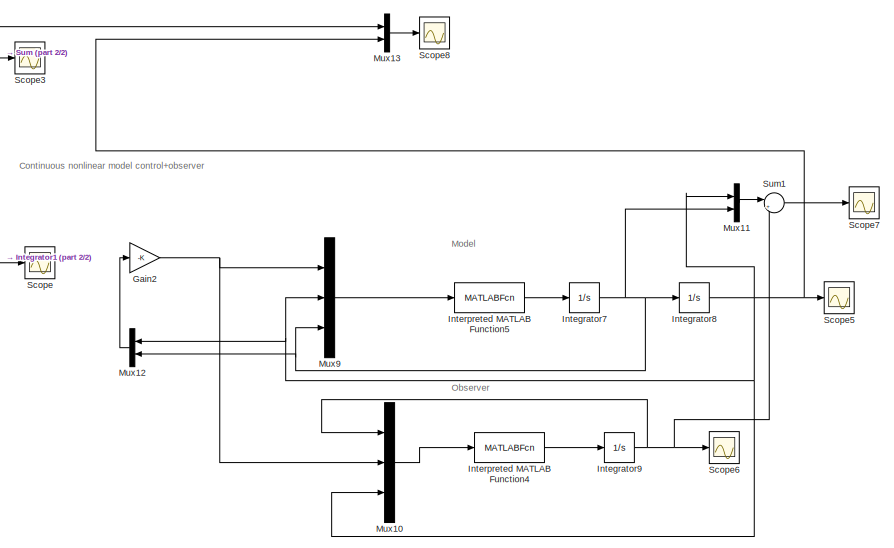
[diagram: root canvas - part 1/2, middle right region]
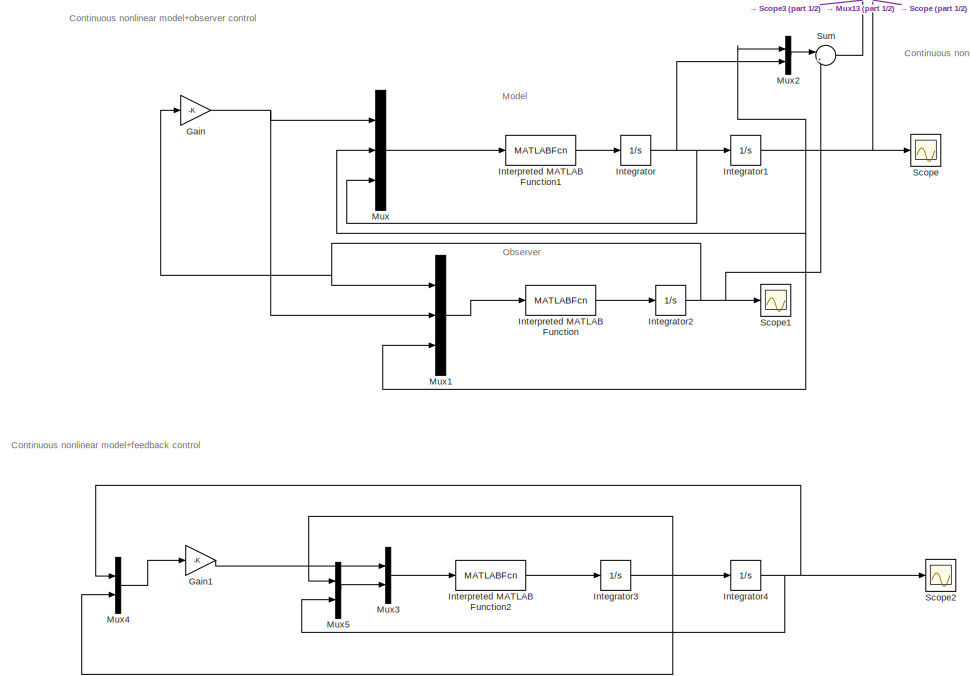
[diagram: root canvas - part 2/2, left side, full height]
MODEL slx_0f21c987a335
KIND model
CONFIG AbsTol = auto
CONFIG FixedStep = auto
CONFIG MaxStep = auto
CONFIG MinStep = auto
CONFIG RelTol = 1e-7
CONFIG SampleTimeConstraint = Unconstrained
CONFIG Solver = VariableStepAuto
CONFIG SolverMode = Auto
CONFIG SolverName = VariableStepAuto
CONFIG StartTime = 0.0
CONFIG StopTime = 30.0
BLOCK [Gain] Gain
  Gain = -K
  Multiplication = Matrix(K*u) (u vector)
  OutDataTypeStr = Inherit: Inherit via internal rule
  ParamDataTypeStr = Inherit: Inherit via internal rule
  SaturateOnIntegerOverflow = off
BLOCK [Gain] Gain1
  Gain = -K
  Multiplication = Matrix(K*u) (u vector)
  OutDataTypeStr = Inherit: Inherit via internal rule
  ParamDataTypeStr = Inherit: Inherit via internal rule
  SaturateOnIntegerOverflow = off
BLOCK [Gain] Gain2
  Gain = -K
  Multiplication = Matrix(K*u) (u vector)
  OutDataTypeStr = Inherit: Inherit via internal rule
  ParamDataTypeStr = Inherit: Inherit via internal rule
  SaturateOnIntegerOverflow = off
BLOCK [Integrator] Integrator
  ContinuousStateAttributes = 'speed'
  InitialCondition = [0 0 0]'
  Ports = [1, 1]
BLOCK [Integrator] Integrator1
  ContinuousStateAttributes = 'position'
  InitialCondition = [1 1 1]'
  Ports = [1, 1]
BLOCK [Integrator] Integrator2
  ContinuousStateAttributes = 'state.approx'
  InitialCondition = [1 0.5 0 0 0 0]'
  Ports = [1, 1]
BLOCK [Integrator] Integrator3
  ContinuousStateAttributes = 'speed'
  InitialCondition = [0 0 0]'
  Ports = [1, 1]
BLOCK [Integrator] Integrator4
  ContinuousStateAttributes = 'position'
  InitialCondition = [1 1 1]'
  Ports = [1, 1]
BLOCK [Integrator] Integrator7
  ContinuousStateAttributes = 'speed'
  InitialCondition = [0 0 0]'
  Ports = [1, 1]
BLOCK [Integrator] Integrator8
  ContinuousStateAttributes = 'position'
  InitialCondition = [1 1 1]'
  Ports = [1, 1]
BLOCK [Integrator] Integrator9
  ContinuousStateAttributes = 'state.approx'
  InitialCondition = [1 0.5 0 0 0 0]'
  Ports = [1, 1]
BLOCK [MATLABFcn] Interpreted MATLAB Function
  MATLABFcn = Observer
  OutputDimensions = 6
  Ports = [1, 1]
BLOCK [MATLABFcn] Interpreted MATLAB Function1
  MATLABFcn = nonlmodel
  Output1D = off
  OutputDimensions = 3
  Ports = [1, 1]
BLOCK [MATLABFcn] Interpreted MATLAB Function2
  MATLABFcn = nonlmodel
  Output1D = off
  OutputDimensions = 3
  Ports = [1, 1]
BLOCK [MATLABFcn] Interpreted MATLAB Function4
  MATLABFcn = Observer
  OutputDimensions = 6
  Ports = [1, 1]
BLOCK [MATLABFcn] Interpreted MATLAB Function5
  MATLABFcn = nonlmodel
  Output1D = off
  OutputDimensions = 3
  Ports = [1, 1]
BLOCK [Mux] Mux
  DisplayOption = bar
  Inputs = 3
  Ports = [3, 1]
BLOCK [Mux] Mux1
  DisplayOption = bar
  Inputs = 3
  Ports = [3, 1]
BLOCK [Mux] Mux10
  DisplayOption = bar
  Inputs = 3
  Ports = [3, 1]
BLOCK [Mux] Mux11
  DisplayOption = bar
  Inputs = 2
  Ports = [2, 1]
BLOCK [Mux] Mux12
  DisplayOption = bar
  Inputs = 2
  Ports = [2, 1]
BLOCK [Mux] Mux13
  DisplayOption = bar
  Inputs = 2
  Ports = [2, 1]
BLOCK [Mux] Mux2
  DisplayOption = bar
  Inputs = 2
  Ports = [2, 1]
BLOCK [Mux] Mux3
  DisplayOption = bar
  Inputs = 2
  Ports = [2, 1]
BLOCK [Mux] Mux4
  DisplayOption = bar
  Inputs = 2
  Ports = [2, 1]
BLOCK [Mux] Mux5
  DisplayOption = bar
  Inputs = 2
  Ports = [2, 1]
BLOCK [Mux] Mux9
  DisplayOption = bar
  Inputs = 3
  Ports = [3, 1]
BLOCK [Scope] Scope
  Ports = [1]
  ScopeSpecificationString = Simulink.scopes.TimeScopeBlockCfg('CurrentConfiguration', extmgr.ConfigurationSet(extmgr.Configuration('Core','General UI',true),extmgr.Configuration('Core','Source UI',true),extmgr.Configuration('Sources','WiredSimulink',true),extmgr.Configuration('Visuals','Time Domain',true,'SerializedDisplays',{struct('MinYLimReal','-1.59559','MaxYLimReal','1.38482','YLabelReal','','MinYLimMag','0.00000','MaxY...<+1436ch>
BLOCK [Scope] Scope1
  Ports = [1]
  ScopeSpecificationString = Simulink.scopes.TimeScopeBlockCfg('CurrentConfiguration', extmgr.ConfigurationSet(extmgr.Configuration('Core','General UI',true),extmgr.Configuration('Core','Source UI',true),extmgr.Configuration('Sources','WiredSimulink',true,'DataLoggingVariableName','ScopeData1'),extmgr.Configuration('Visuals','Time Domain',true,'SerializedDisplays',{struct('MinYLimReal','-1.57407','MaxYLimReal','1.79258','YLab...<+1477ch>
BLOCK [Scope] Scope2
  Ports = [1]
  ScopeSpecificationString = Simulink.scopes.TimeScopeBlockCfg('CurrentConfiguration', extmgr.ConfigurationSet(extmgr.Configuration('Core','General UI',true),extmgr.Configuration('Core','Source UI',true),extmgr.Configuration('Sources','WiredSimulink',true,'DataLoggingVariableName','ScopeData1'),extmgr.Configuration('Visuals','Time Domain',true,'SerializedDisplays',{struct('MinYLimReal','-23.35668','MaxYLimReal','14.2657','YLa...<+1479ch>
BLOCK [Scope] Scope3
  Ports = [1]
  ScopeSpecificationString = Simulink.scopes.TimeScopeBlockCfg('CurrentConfiguration', extmgr.ConfigurationSet(extmgr.Configuration('Core','General UI',true),extmgr.Configuration('Core','Source UI',true),extmgr.Configuration('Sources','WiredSimulink',true,'DataLoggingVariableName','ScopeData2'),extmgr.Configuration('Visuals','Time Domain',true,'SerializedDisplays',{struct('MinYLimReal','-0.87555','MaxYLimReal','2.15484','YLab...<+1429ch>
BLOCK [Scope] Scope5
  Ports = [1]
  ScopeSpecificationString = Simulink.scopes.TimeScopeBlockCfg('CurrentConfiguration', extmgr.ConfigurationSet(extmgr.Configuration('Core','General UI',true),extmgr.Configuration('Core','Source UI',true),extmgr.Configuration('Sources','WiredSimulink',true,'DataLoggingVariableName','ScopeData1'),extmgr.Configuration('Visuals','Time Domain',true,'SerializedDisplays',{struct('MinYLimReal','-0.125','MaxYLimReal','1.125','YLabelRe...<+1392ch>
BLOCK [Scope] Scope6
  Ports = [1]
  ScopeSpecificationString = C++SS(StrPVP('SaveName','ScopeData2'),StrPVP('LimitDataPoints','on'),StrPVP('DataFormat','Array'),StrPVP('Decimation','1'),StrPVP('BlockParamSampleInput','off'))
BLOCK [Scope] Scope7
  Ports = [1]
  ScopeSpecificationString = Simulink.scopes.TimeScopeBlockCfg('CurrentConfiguration', extmgr.ConfigurationSet(extmgr.Configuration('Core','General UI',true),extmgr.Configuration('Core','Source UI',true),extmgr.Configuration('Sources','WiredSimulink',true,'DataLoggingVariableName','ScopeData3'),extmgr.Configuration('Visuals','Time Domain',true,'SerializedDisplays',{struct('MinYLimReal','-1.90574','MaxYLimReal','4.09606','YLab...<+1410ch>
BLOCK [Scope] Scope8
  Ports = [1]
  ScopeSpecificationString = Simulink.scopes.TimeScopeBlockCfg('CurrentConfiguration', extmgr.ConfigurationSet(extmgr.Configuration('Core','General UI',true),extmgr.Configuration('Core','Source UI',true),extmgr.Configuration('Sources','WiredSimulink',true,'DataLoggingVariableName','ScopeData4'),extmgr.Configuration('Visuals','Time Domain',true,'SerializedDisplays',{struct('MinYLimReal','-1.10495','MaxYLimReal','1.8866','YLabe...<+1475ch>
BLOCK [Sum] Sum
  IconShape = round
  InputSameDT = off
  Inputs = |+-
  OutDataTypeStr = Inherit: Inherit via internal rule
  Ports = [2, 1]
  SaturateOnIntegerOverflow = off
BLOCK [Sum] Sum1
  IconShape = round
  InputSameDT = off
  Inputs = |+-
  OutDataTypeStr = Inherit: Inherit via internal rule
  Ports = [2, 1]
  SaturateOnIntegerOverflow = off
ANNOTATION (root): Model
ANNOTATION (root): Continuous nonlinear model+feedback control
ANNOTATION (root): Observer
ANNOTATION (root): Continuous nonlinear model control+observer
ANNOTATION (root): Continuous nonlinear model+observer control
LINE Gain1:1 -> Mux3:1
NET Gain2:1 -> Mux10:2, Mux9:1
NET Gain:1 -> Mux1:2, Mux:1
NET Integrator1:1 -> Mux13:1, Mux1:3, Mux2:1, Mux:2, Scope:1
NET Integrator2:1 -> Gain:1, Mux1:1, Scope1:1, Sum:2
NET Integrator3:1 -> Integrator4:1, Mux4:2, Mux5:1
NET Integrator4:1 -> Mux4:1, Mux5:2, Scope2:1
NET Integrator7:1 -> Integrator8:1, Mux11:2, Mux12:2, Mux9:3
NET Integrator8:1 -> Mux10:3, Mux11:1, Mux12:1, Mux13:2, Mux9:2, Scope5:1
NET Integrator9:1 -> Mux10:1, Scope6:1, Sum1:2
NET Integrator:1 -> Integrator1:1, Mux2:2, Mux:3
LINE Interpreted MATLAB Function1:1 -> Integrator:1
LINE Interpreted MATLAB Function2:1 -> Integrator3:1
LINE Interpreted MATLAB Function4:1 -> Integrator9:1
LINE Interpreted MATLAB Function5:1 -> Integrator7:1
LINE Interpreted MATLAB Function:1 -> Integrator2:1
LINE Mux10:1 -> Interpreted MATLAB Function4:1
LINE Mux11:1 -> Sum1:1
LINE Mux12:1 -> Gain2:1
LINE Mux13:1 -> Scope8:1
LINE Mux1:1 -> Interpreted MATLAB Function:1
LINE Mux2:1 -> Sum:1
LINE Mux3:1 -> Interpreted MATLAB Function2:1
LINE Mux4:1 -> Gain1:1
LINE Mux5:1 -> Mux3:2
LINE Mux9:1 -> Interpreted MATLAB Function5:1
LINE Mux:1 -> Interpreted MATLAB Function1:1
LINE Sum1:1 -> Scope7:1
LINE Sum:1 -> Scope3:1
note: NET lines group one-source signal fan-out (src -> all destinations, sorted); 1:1 wires keep LINE
